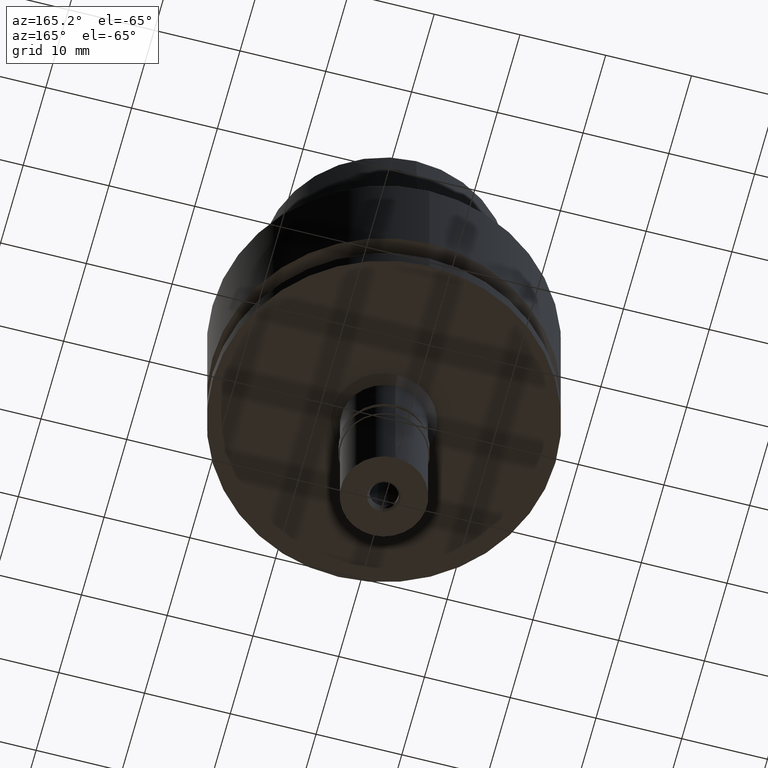
[diagram: clean part render]
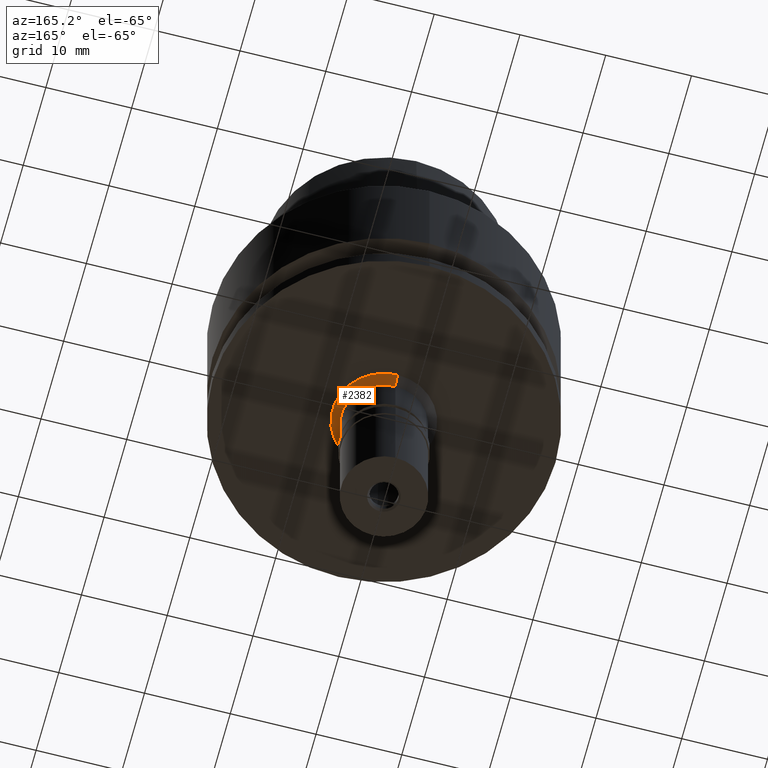
[diagram: same view with one face highlighted and labeled with its STEP entity id]
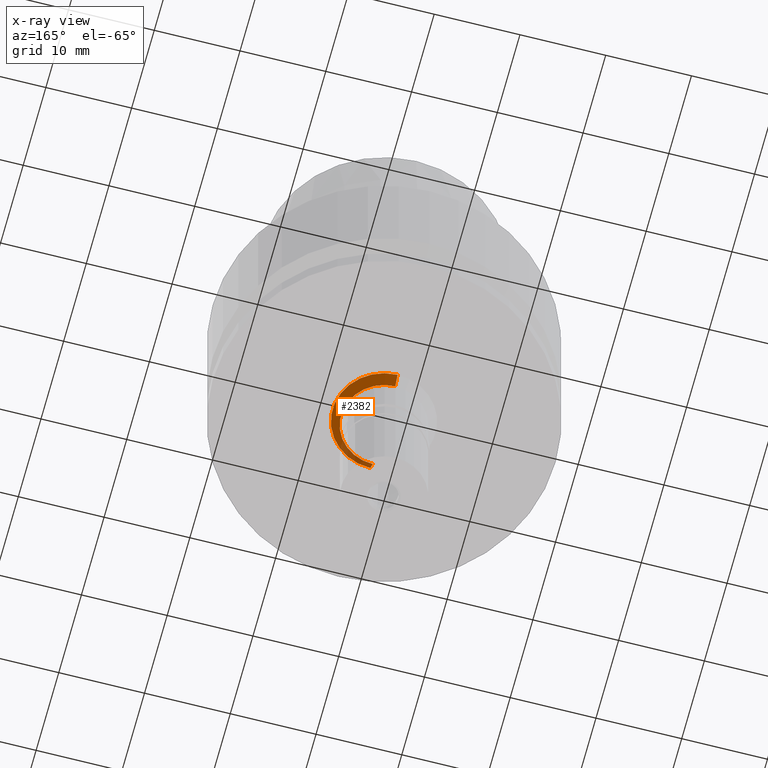
[diagram: x-ray of the same camera — body ghosted, the highlighted face saturated]
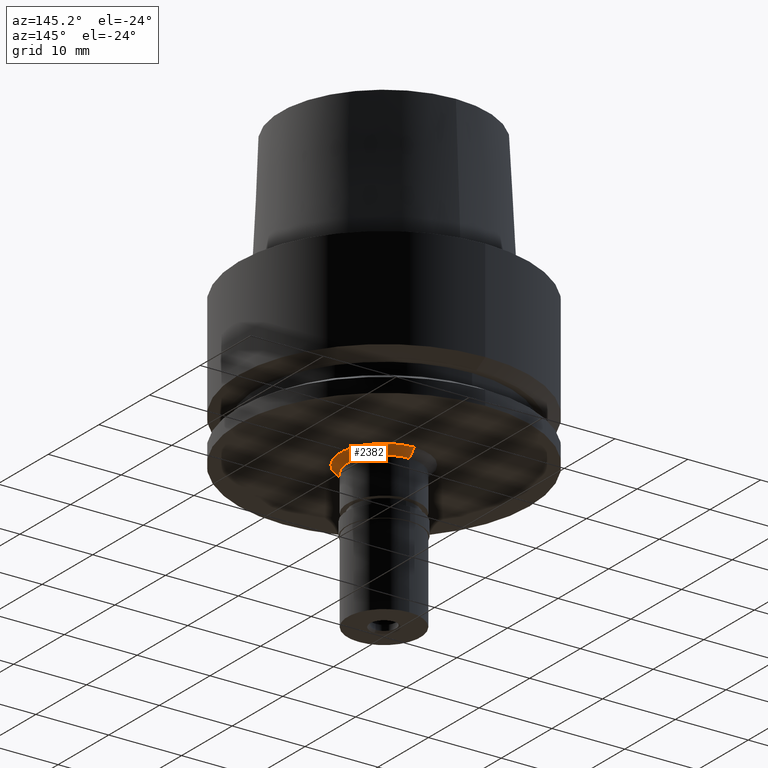
[diagram: same view with one face highlighted and labeled with its STEP entity id]
A machine part, auxiliary view. The second image highlights one B-rep face of the part: STEP entity #2382.
The next image is the same camera in x-ray: the body ghosted, the highlighted face saturated — about 16% of this face is hidden behind the body in this view.
A second angle (auxiliary view) of the same face is appended — the face is thin or edge-on in the first view.
In plain terms, the highlighted conical surface has half-angle 45 deg.
Its self-contained STEP definition (entity closure, byte-faithful):
#19 = VECTOR ( 'NONE', #1102, 1000.000000000000114 ) ;
#86 = CARTESIAN_POINT ( 'NONE',  ( 0.0000000000000000000, -5.000000000000000000, -21.00000000000000000 ) ) ;
#120 = DIRECTION ( 'NONE',  ( 0.0000000000000000000, 1.000000000000000000, 0.0000000000000000000 ) ) ;
#210 = CARTESIAN_POINT ( 'NONE',  ( 0.0000000000000000000, 5.000000000000000000, -21.00000000000000000 ) ) ;
#227 = LINE ( 'NONE', #2517, #19 ) ;
#230 = VECTOR ( 'NONE', #2525, 1000.000000000000114 ) ;
#271 = CIRCLE ( 'NONE', #488, 5.000000000000000000 ) ;
#302 = ORIENTED_EDGE ( 'NONE', *, *, #1695, .T. ) ;
#488 = AXIS2_PLACEMENT_3D ( 'NONE', #1005, #1845, #120 ) ;
#534 = CIRCLE ( 'NONE', #1974, 6.000000000000000000 ) ;
#698 = EDGE_CURVE ( 'NONE', #1941, #2358, #271, .T. ) ;
#741 = FACE_OUTER_BOUND ( 'NONE', #1069, .T. ) ;
#747 = CARTESIAN_POINT ( 'NONE',  ( 0.0000000000000000000, 6.000000000000000000, -20.00000000000000000 ) ) ;
#942 = DIRECTION ( 'NONE',  ( 0.0000000000000000000, 0.0000000000000000000, -1.000000000000000000 ) ) ;
#1005 = CARTESIAN_POINT ( 'NONE',  ( 0.0000000000000000000, 0.0000000000000000000, -21.00000000000000000 ) ) ;
#1066 = AXIS2_PLACEMENT_3D ( 'NONE', #2609, #2571, #2391 ) ;
#1069 = EDGE_LOOP ( 'NONE', ( #302, #1082, #1513, #2455 ) ) ;
#1082 = ORIENTED_EDGE ( 'NONE', *, *, #2635, .T. ) ;
#1102 = DIRECTION ( 'NONE',  ( 0.0000000000000000000, 0.7071067811865474617, -0.7071067811865474617 ) ) ;
#1513 = ORIENTED_EDGE ( 'NONE', *, *, #698, .F. ) ;
#1526 = CARTESIAN_POINT ( 'NONE',  ( 0.0000000000000000000, 0.0000000000000000000, -20.00000000000000000 ) ) ;
#1543 = EDGE_CURVE ( 'NONE', #1859, #1941, #1715, .T. ) ;
#1695 = EDGE_CURVE ( 'NONE', #1859, #2006, #534, .T. ) ;
#1715 = LINE ( 'NONE', #2695, #230 ) ;
#1845 = DIRECTION ( 'NONE',  ( 0.0000000000000000000, 0.0000000000000000000, -1.000000000000000000 ) ) ;
#1859 = VERTEX_POINT ( 'NONE', #747 ) ;
#1941 = VERTEX_POINT ( 'NONE', #210 ) ;
#1974 = AXIS2_PLACEMENT_3D ( 'NONE', #1526, #942, #2554 ) ;
#2006 = VERTEX_POINT ( 'NONE', #2244 ) ;
#2024 = CONICAL_SURFACE ( 'NONE', #1066, 5.500000000000000000, 0.7853981633972997312 ) ;
#2244 = CARTESIAN_POINT ( 'NONE',  ( 0.0000000000000000000, -6.000000000000000000, -20.00000000000000000 ) ) ;
#2358 = VERTEX_POINT ( 'NONE', #86 ) ;
#2382 = ADVANCED_FACE ( 'NONE', ( #741 ), #2024, .T. ) ;
#2391 = DIRECTION ( 'NONE',  ( 0.0000000000000000000, 1.000000000000000000, 0.0000000000000000000 ) ) ;
#2455 = ORIENTED_EDGE ( 'NONE', *, *, #1543, .F. ) ;
#2517 = CARTESIAN_POINT ( 'NONE',  ( 0.0000000000000000000, -6.000000000000000000, -20.00000000000000000 ) ) ;
#2525 = DIRECTION ( 'NONE',  ( 0.0000000000000000000, -0.7071067811865474617, -0.7071067811865474617 ) ) ;
#2554 = DIRECTION ( 'NONE',  ( 0.0000000000000000000, 1.000000000000000000, 0.0000000000000000000 ) ) ;
#2571 = DIRECTION ( 'NONE',  ( 0.0000000000000000000, 0.0000000000000000000, 1.000000000000000000 ) ) ;
#2609 = CARTESIAN_POINT ( 'NONE',  ( 0.0000000000000000000, 0.0000000000000000000, -20.50000000000000000 ) ) ;
#2635 = EDGE_CURVE ( 'NONE', #2006, #2358, #227, .T. ) ;
#2695 = CARTESIAN_POINT ( 'NONE',  ( 0.0000000000000000000, 6.000000000000000000, -20.00000000000000000 ) ) ;